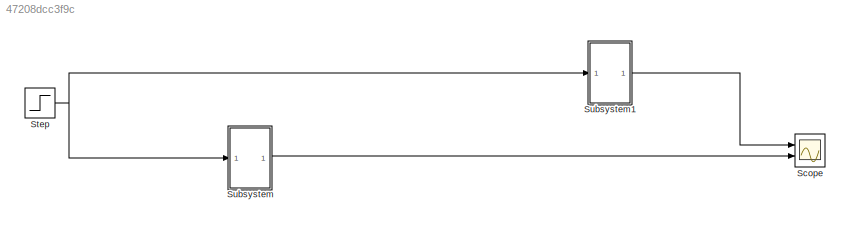
MODEL slx_47208dcc3f9c
KIND model
CONFIG AbsTol = auto
CONFIG EnableMultiTasking = off
CONFIG FixedStep = auto
CONFIG MaxStep = auto
CONFIG MinStep = auto
CONFIG RelTol = 1e-3
CONFIG SampleTimeConstraint = Unconstrained
CONFIG SolverName = VariableStepAuto
CONFIG StartTime = 0.0
CONFIG StopTime = 10.0
BLOCK [Scope] Scope
  Floating = off
  NumInputPorts = 2
  Ports = [2]
  ScopeSpecificationString = Simulink.scopes.TimeScopeBlockCfg('CurrentConfiguration', extmgr.ConfigurationSet(extmgr.Configuration('Core','General UI',true),extmgr.Configuration('Core','Source UI',true),extmgr.Configuration('Sources','WiredSimulink',true),extmgr.Configuration('Visuals','Time Domain',true),extmgr.Configuration('Tools','Plot Navigation',true),extmgr.Configuration('Tools','Measurements',true)),'Version','2020b'...<+1ch>
BLOCK [Step] Step
  SampleTime = 0
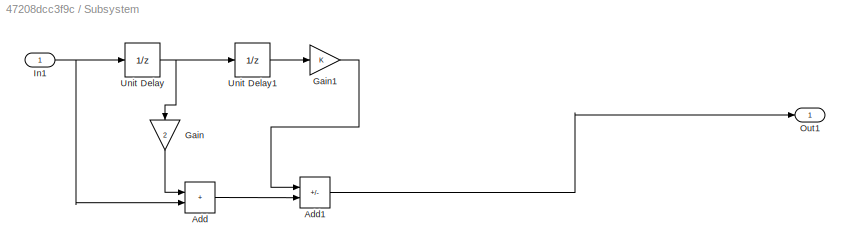
BLOCK [SubSystem] Subsystem
  Ports = [1, 1]
  RequestExecContextInheritance = off
BLOCK [Sum] Subsystem/Add
  IconShape = rectangular
  Ports = [2, 1]
BLOCK [Sum] Subsystem/Add1
  IconShape = rectangular
  Inputs = -+
  Ports = [2, 1]
BLOCK [Gain] Subsystem/Gain
  Gain = 2
  NameLocation = left
BLOCK [Gain] Subsystem/Gain1
BLOCK [Inport] Subsystem/In1
BLOCK [Outport] Subsystem/Out1
BLOCK [UnitDelay] Subsystem/Unit Delay
  HasFrameUpgradeWarning = on
  SampleTime = -1
BLOCK [UnitDelay] Subsystem/Unit Delay1
  HasFrameUpgradeWarning = on
  SampleTime = -1
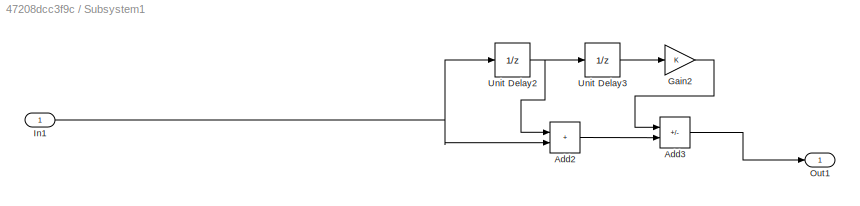
BLOCK [SubSystem] Subsystem1
  Ports = [1, 1]
  RequestExecContextInheritance = off
BLOCK [Sum] Subsystem1/Add2
  IconShape = rectangular
  Ports = [2, 1]
BLOCK [Sum] Subsystem1/Add3
  IconShape = rectangular
  Inputs = -+
  Ports = [2, 1]
BLOCK [Gain] Subsystem1/Gain2
BLOCK [Inport] Subsystem1/In1
BLOCK [Outport] Subsystem1/Out1
BLOCK [UnitDelay] Subsystem1/Unit Delay2
  HasFrameUpgradeWarning = on
  SampleTime = -1
BLOCK [UnitDelay] Subsystem1/Unit Delay3
  HasFrameUpgradeWarning = on
  SampleTime = -1
NET Step:1 -> Subsystem1:1, Subsystem:1
LINE Subsystem/Add1:1 -> Subsystem/Out1:1
LINE Subsystem/Add:1 -> Subsystem/Add1:2
LINE Subsystem/Gain1:1 -> Subsystem/Add1:1
LINE Subsystem/Gain:1 -> Subsystem/Add:1
NET Subsystem/In1:1 -> Subsystem/Add:2, Subsystem/Unit Delay:1
LINE Subsystem/Unit Delay1:1 -> Subsystem/Gain1:1
NET Subsystem/Unit Delay:1 -> Subsystem/Gain:1, Subsystem/Unit Delay1:1
LINE Subsystem1/Add2:1 -> Subsystem1/Add3:2
LINE Subsystem1/Add3:1 -> Subsystem1/Out1:1
LINE Subsystem1/Gain2:1 -> Subsystem1/Add3:1
NET Subsystem1/In1:1 -> Subsystem1/Add2:2, Subsystem1/Unit Delay2:1
NET Subsystem1/Unit Delay2:1 -> Subsystem1/Add2:1, Subsystem1/Unit Delay3:1
LINE Subsystem1/Unit Delay3:1 -> Subsystem1/Gain2:1
LINE Subsystem1:1 -> Scope:1
LINE Subsystem:1 -> Scope:2
note: NET lines group one-source signal fan-out (src -> all destinations, sorted); 1:1 wires keep LINE
